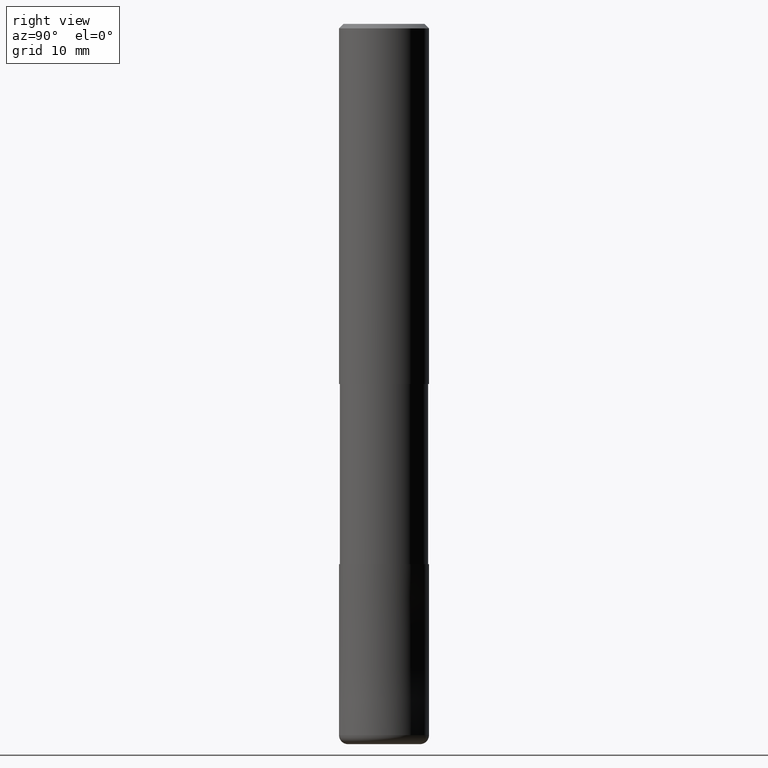
[diagram: clean part render]
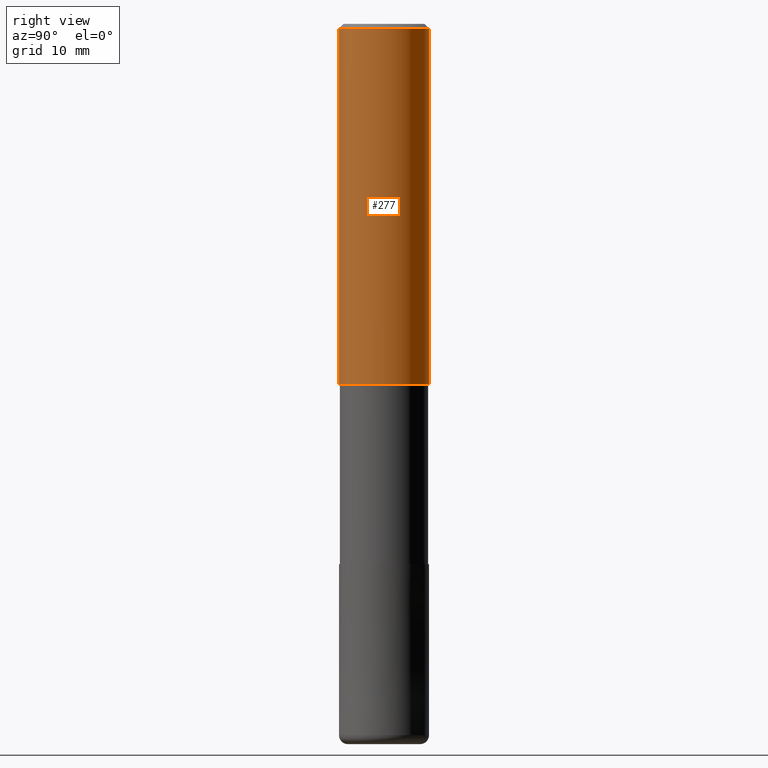
[diagram: same view with one face highlighted and labeled with its STEP entity id]
A machine part, right view. The second image highlights one B-rep face of the part: STEP entity #277.
In plain terms, the highlighted cylindrical surface (partial cylindrical patch) has radius 5 mm, axis along (-0, -0, 1).
Its self-contained STEP definition (entity closure, byte-faithful):
#133=VERTEX_POINT('',#322);
#137=VERTEX_POINT('',#327);
#161=EDGE_CURVE('',#279,#133,#354,.T.);
#179=EDGE_CURVE('',#279,#251,#374,.T.);
#195=EDGE_CURVE('',#137,#251,#392,.T.);
#233=EDGE_CURVE('',#133,#137,#434,.T.);
#251=VERTEX_POINT('',#456);
#277=ADVANCED_FACE('',(#487),#488,.T.);
#279=VERTEX_POINT('',#490);
#322=CARTESIAN_POINT('',(0.0,5.0,-40.0));
#327=CARTESIAN_POINT('',(6.12303176911189E-016,-5.0,-40.0));
#354=LINE('',#569,#570);
#374=CIRCLE('',#596,5.0);
#392=LINE('',#621,#622);
#434=CIRCLE('',#675,5.0);
#456=CARTESIAN_POINT('',(6.12303176911189E-016,-5.0,-0.5));
#487=FACE_OUTER_BOUND('',#738,.T.);
#488=CYLINDRICAL_SURFACE('',#739,5.0);
#490=CARTESIAN_POINT('',(0.0,5.0,-0.5));
#569=CARTESIAN_POINT('',(-6.12303176911189E-016,5.0,-20.25));
#570=VECTOR('',#815,1.0);
#596=AXIS2_PLACEMENT_3D('',#840,#841,#842);
#621=CARTESIAN_POINT('',(6.12303176911189E-016,-5.0,-20.25));
#622=VECTOR('',#863,1.0);
#675=AXIS2_PLACEMENT_3D('',#906,#907,#908);
#738=EDGE_LOOP('',(#984,#985,#986,#987));
#739=AXIS2_PLACEMENT_3D('',#988,#989,#990);
#815=DIRECTION('',(0.0,0.0,-1.0));
#840=CARTESIAN_POINT('',(0.0,0.0,-0.5));
#841=DIRECTION('',(0.0,0.0,-1.0));
#842=DIRECTION('',(0.0,1.0,0.0));
#863=DIRECTION('',(-0.0,-0.0,1.0));
#906=CARTESIAN_POINT('',(0.0,0.0,-40.0));
#907=DIRECTION('',(0.0,0.0,-1.0));
#908=DIRECTION('',(0.0,1.0,0.0));
#984=ORIENTED_EDGE('',*,*,#161,.F.);
#985=ORIENTED_EDGE('',*,*,#179,.T.);
#986=ORIENTED_EDGE('',*,*,#195,.F.);
#987=ORIENTED_EDGE('',*,*,#233,.F.);
#988=CARTESIAN_POINT('',(0.0,0.0,-20.25));
#989=DIRECTION('',(-0.0,-0.0,1.0));
#990=DIRECTION('',(0.0,1.0,0.0));